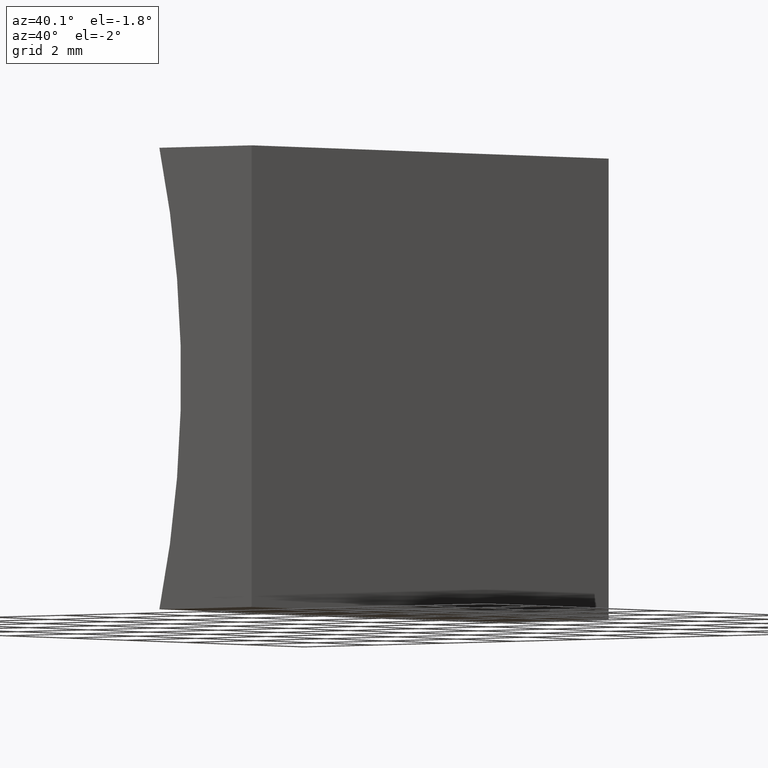
[diagram: clean part render]
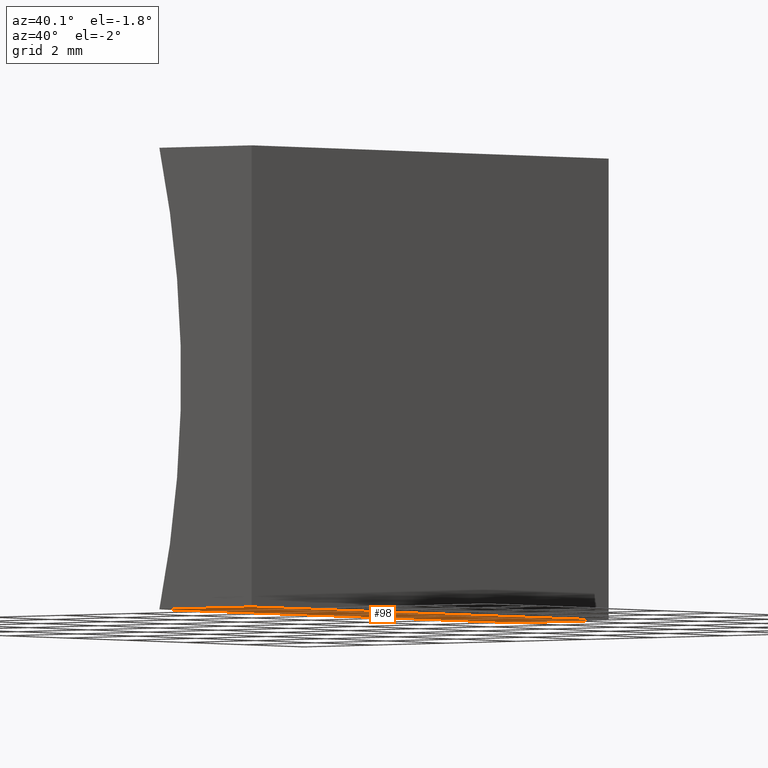
[diagram: same view with one face highlighted and labeled with its STEP entity id]
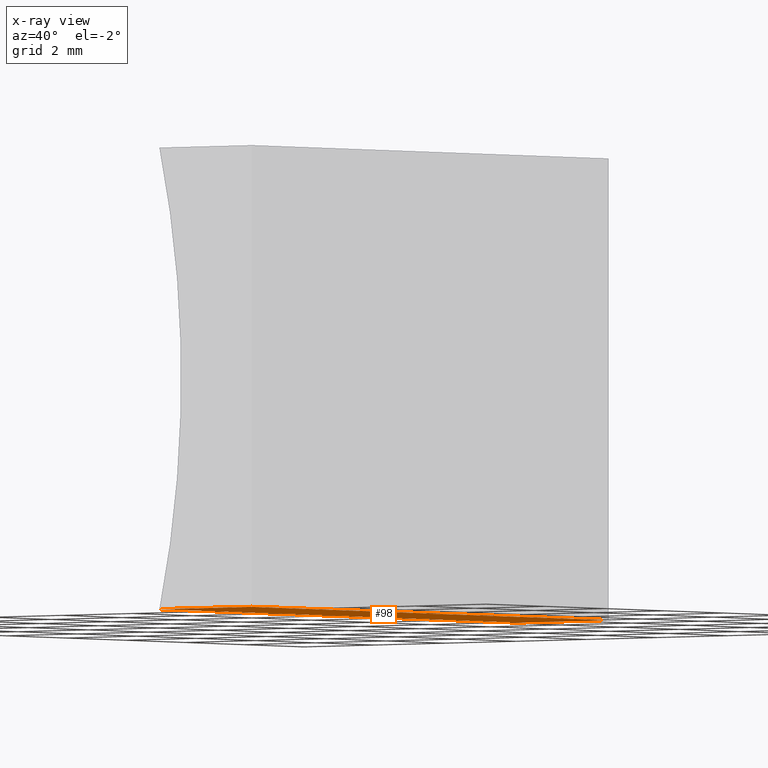
[diagram: x-ray of the same camera — body ghosted, the highlighted face saturated]
A machine part, auxiliary view. The second image highlights one B-rep face of the part: STEP entity #98.
The next image is the same camera in x-ray: the body ghosted, the highlighted face saturated — about 0% of this face is hidden behind the body in this view.
In plain terms, the highlighted planar face has unit normal (0, -0, 1).
Its self-contained STEP definition (entity closure, byte-faithful):
#17 = CARTESIAN_POINT ( 'NONE',  ( 0.0000000000000000000, 12.00000000000000000, 0.0000000000000000000 ) ) ;
#18 = VECTOR ( 'NONE', #194, 1000.000000000000000 ) ;
#21 = AXIS2_PLACEMENT_3D ( 'NONE', #112, #31, #145 ) ;
#22 = VECTOR ( 'NONE', #161, 1000.000000000000000 ) ;
#25 = ORIENTED_EDGE ( 'NONE', *, *, #93, .F. ) ;
#30 = EDGE_CURVE ( 'NONE', #64, #59, #121, .T. ) ;
#31 = DIRECTION ( 'NONE',  ( 0.0000000000000000000, -0.0000000000000000000, 1.000000000000000000 ) ) ;
#33 = DIRECTION ( 'NONE',  ( -1.000000000000000000, 0.0000000000000000000, 0.0000000000000000000 ) ) ;
#52 = EDGE_CURVE ( 'NONE', #111, #64, #197, .T. ) ;
#55 = PLANE ( 'NONE',  #21 ) ;
#59 = VERTEX_POINT ( 'NONE', #196 ) ;
#61 = VECTOR ( 'NONE', #33, 1000.000000000000000 ) ;
#64 = VERTEX_POINT ( 'NONE', #78 ) ;
#69 = CARTESIAN_POINT ( 'NONE',  ( 0.0000000000000000000, 12.00000000000000000, 0.0000000000000000000 ) ) ;
#72 = FACE_OUTER_BOUND ( 'NONE', #146, .T. ) ;
#75 = CARTESIAN_POINT ( 'NONE',  ( 0.0000000000000000000, 12.00000000000000000, 0.0000000000000000000 ) ) ;
#76 = ORIENTED_EDGE ( 'NONE', *, *, #107, .F. ) ;
#78 = CARTESIAN_POINT ( 'NONE',  ( 0.0000000000000000000, 0.0000000000000000000, 0.0000000000000000000 ) ) ;
#84 = VERTEX_POINT ( 'NONE', #92 ) ;
#91 = CARTESIAN_POINT ( 'NONE',  ( 0.0000000000000000000, 0.0000000000000000000, 0.0000000000000000000 ) ) ;
#92 = CARTESIAN_POINT ( 'NONE',  ( -2.613550388770813400, 12.00000000000000000, 0.0000000000000000000 ) ) ;
#93 = EDGE_CURVE ( 'NONE', #111, #84, #129, .T. ) ;
#98 = ADVANCED_FACE ( 'NONE', ( #72 ), #55, .F. ) ;
#107 = EDGE_CURVE ( 'NONE', #84, #59, #172, .T. ) ;
#111 = VERTEX_POINT ( 'NONE', #75 ) ;
#112 = CARTESIAN_POINT ( 'NONE',  ( 0.0000000000000000000, 12.00000000000000000, 0.0000000000000000000 ) ) ;
#119 = VECTOR ( 'NONE', #165, 1000.000000000000000 ) ;
#121 = LINE ( 'NONE', #91, #61 ) ;
#129 = LINE ( 'NONE', #69, #22 ) ;
#131 = CARTESIAN_POINT ( 'NONE',  ( -2.613550388770813400, 12.00000000000000000, 0.0000000000000000000 ) ) ;
#145 = DIRECTION ( 'NONE',  ( 1.000000000000000000, 0.0000000000000000000, -0.0000000000000000000 ) ) ;
#146 = EDGE_LOOP ( 'NONE', ( #159, #76, #25, #153 ) ) ;
#153 = ORIENTED_EDGE ( 'NONE', *, *, #52, .T. ) ;
#159 = ORIENTED_EDGE ( 'NONE', *, *, #30, .T. ) ;
#161 = DIRECTION ( 'NONE',  ( -1.000000000000000000, 0.0000000000000000000, 0.0000000000000000000 ) ) ;
#165 = DIRECTION ( 'NONE',  ( -0.0000000000000000000, -1.000000000000000000, -0.0000000000000000000 ) ) ;
#172 = LINE ( 'NONE', #131, #119 ) ;
#194 = DIRECTION ( 'NONE',  ( -0.0000000000000000000, -1.000000000000000000, -0.0000000000000000000 ) ) ;
#196 = CARTESIAN_POINT ( 'NONE',  ( -2.613550388770813400, 0.0000000000000000000, 0.0000000000000000000 ) ) ;
#197 = LINE ( 'NONE', #17, #18 ) ;